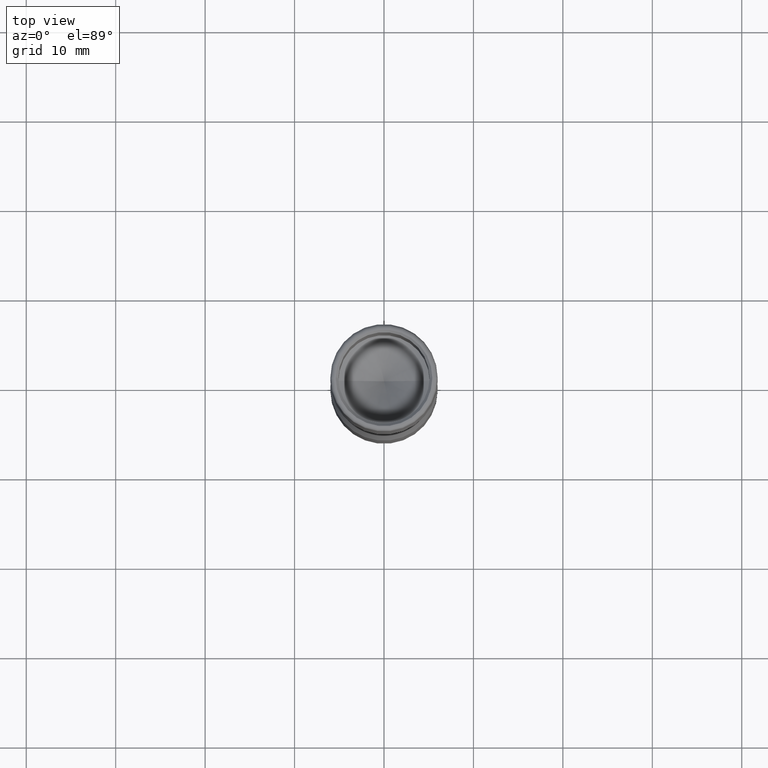
[diagram: clean part render]
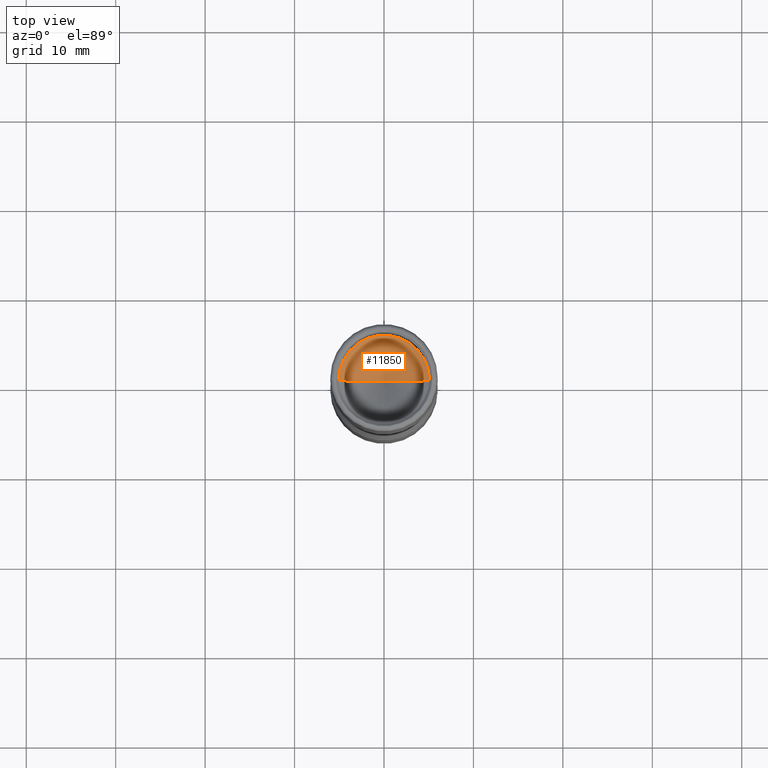
[diagram: same view with one face highlighted and labeled with its STEP entity id]
A machine part, top view. The second image highlights one B-rep face of the part: STEP entity #11850.
In plain terms, the highlighted conical surface has half-angle 59 deg.
Its self-contained STEP definition (entity closure, byte-faithful):
#50 = VERTEX_POINT ( 'NONE', #12882 ) ;
#486 = VERTEX_POINT ( 'NONE', #2320 ) ;
#946 = CARTESIAN_POINT ( 'NONE',  ( 0.000000000000000000, -4.336808689942017736E-15, 17.43945661757529564 ) ) ;
#1488 = LINE ( 'NONE', #10395, #2426 ) ;
#2148 = FACE_OUTER_BOUND ( 'NONE', #3834, .T. ) ;
#2223 = AXIS2_PLACEMENT_3D ( 'NONE', #9794, #5813, #5853 ) ;
#2320 = CARTESIAN_POINT ( 'NONE',  ( -5.099999999999999645, -4.336808689942017736E-15, 20.50384577461582936 ) ) ;
#2417 = CARTESIAN_POINT ( 'NONE',  ( 0.000000000000000000, -4.336808689942017736E-15, 20.50384577461582936 ) ) ;
#2426 = VECTOR ( 'NONE', #6272, 1000.000000000000000 ) ;
#2804 = AXIS2_PLACEMENT_3D ( 'NONE', #2417, #8263, #5381 ) ;
#2916 = EDGE_CURVE ( 'NONE', #7244, #50, #1488, .T. ) ;
#3102 = CARTESIAN_POINT ( 'NONE',  ( -5.099999999999999645, -3.712238822376867849E-15, 20.50384577461582936 ) ) ;
#3408 = ORIENTED_EDGE ( 'NONE', *, *, #11742, .F. ) ;
#3834 = EDGE_LOOP ( 'NONE', ( #3408, #5897, #10816 ) ) ;
#4309 = CONICAL_SURFACE ( 'NONE', #2804, 5.099999999999999645, 1.029744258676657864 ) ;
#5381 = DIRECTION ( 'NONE',  ( 1.000000000000000000, 0.000000000000000000, 0.000000000000000000 ) ) ;
#5813 = DIRECTION ( 'NONE',  ( -0.000000000000000000, -0.000000000000000000, -1.000000000000000000 ) ) ;
#5853 = DIRECTION ( 'NONE',  ( -1.000000000000000000, 0.000000000000000000, 0.000000000000000000 ) ) ;
#5897 = ORIENTED_EDGE ( 'NONE', *, *, #2916, .T. ) ;
#6272 = DIRECTION ( 'NONE',  ( 0.8571673007021141100, 0.000000000000000000, 0.5150380749100512690 ) ) ;
#6647 = VECTOR ( 'NONE', #7988, 1000.000000000000000 ) ;
#7244 = VERTEX_POINT ( 'NONE', #946 ) ;
#7988 = DIRECTION ( 'NONE',  ( -0.8571673007021141100, 1.049727191138620791E-16, 0.5150380749100512690 ) ) ;
#8263 = DIRECTION ( 'NONE',  ( 0.000000000000000000, 0.000000000000000000, 1.000000000000000000 ) ) ;
#8364 = CIRCLE ( 'NONE', #2223, 5.099999999999999645 ) ;
#9794 = CARTESIAN_POINT ( 'NONE',  ( 0.000000000000000000, -4.336808689942017736E-15, 20.50384577461582936 ) ) ;
#9908 = LINE ( 'NONE', #3102, #6647 ) ;
#10046 = EDGE_CURVE ( 'NONE', #486, #50, #8364, .T. ) ;
#10395 = CARTESIAN_POINT ( 'NONE',  ( 5.099999999999999645, -4.336808689942017736E-15, 20.50384577461582936 ) ) ;
#10816 = ORIENTED_EDGE ( 'NONE', *, *, #10046, .F. ) ;
#11742 = EDGE_CURVE ( 'NONE', #7244, #486, #9908, .T. ) ;
#11850 = ADVANCED_FACE ( 'NONE', ( #2148 ), #4309, .F. ) ;
#12882 = CARTESIAN_POINT ( 'NONE',  ( 5.099999999999999645, -3.712238822376867849E-15, 20.50384577461582936 ) ) ;